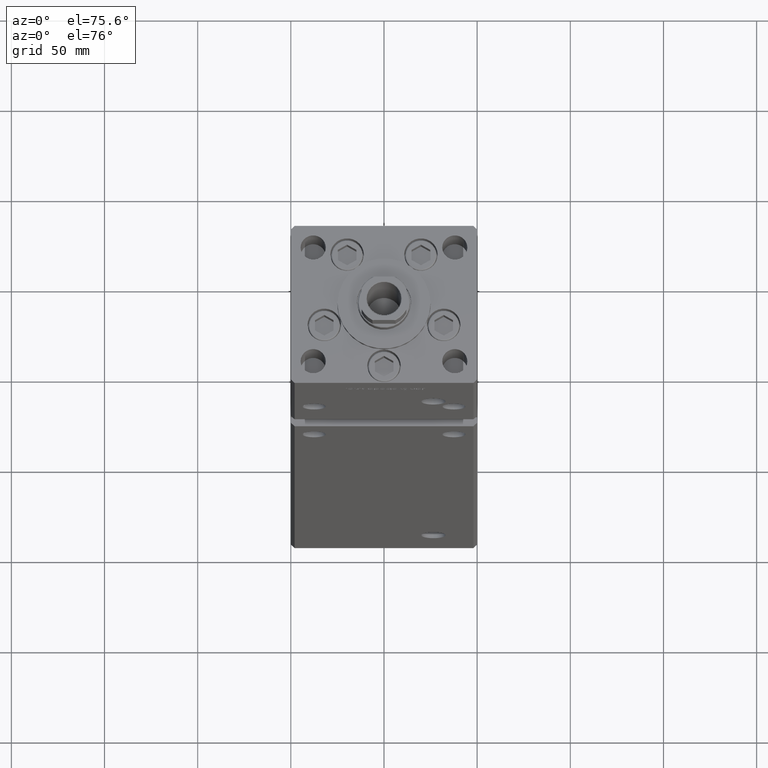
[diagram: clean part render]
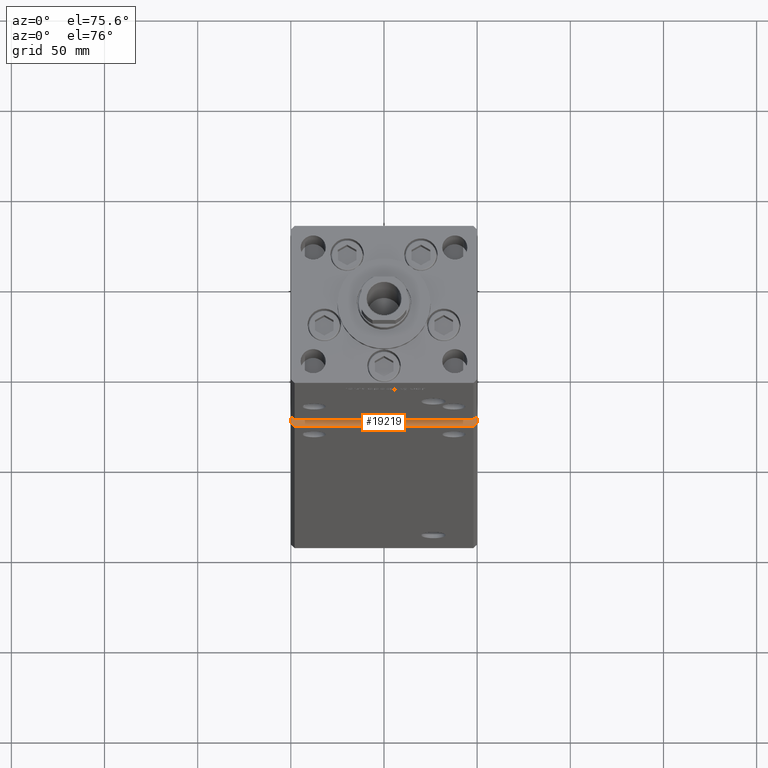
[diagram: same view with one face highlighted and labeled with its STEP entity id]
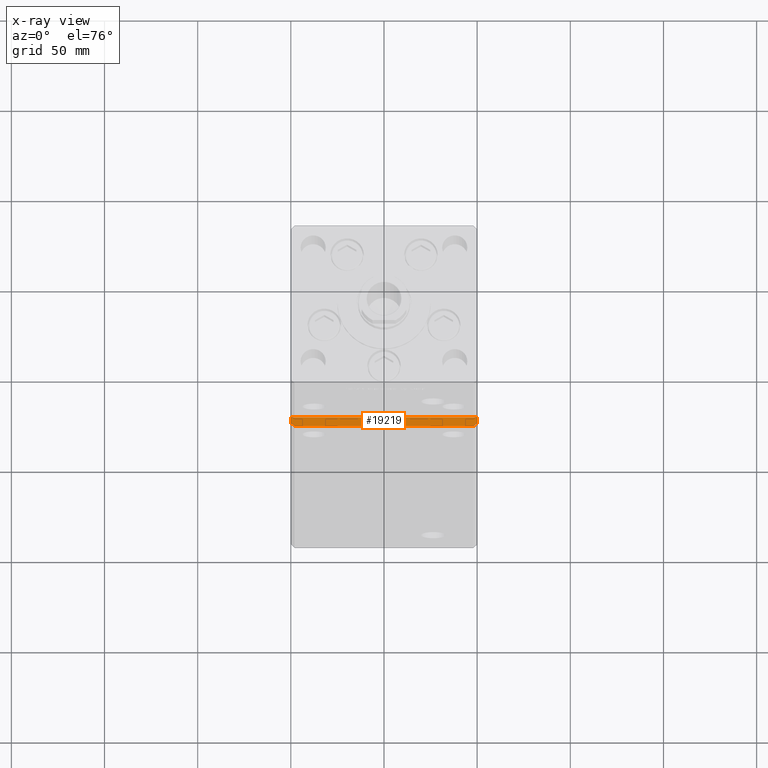
[diagram: x-ray of the same camera — body ghosted, the highlighted face saturated]
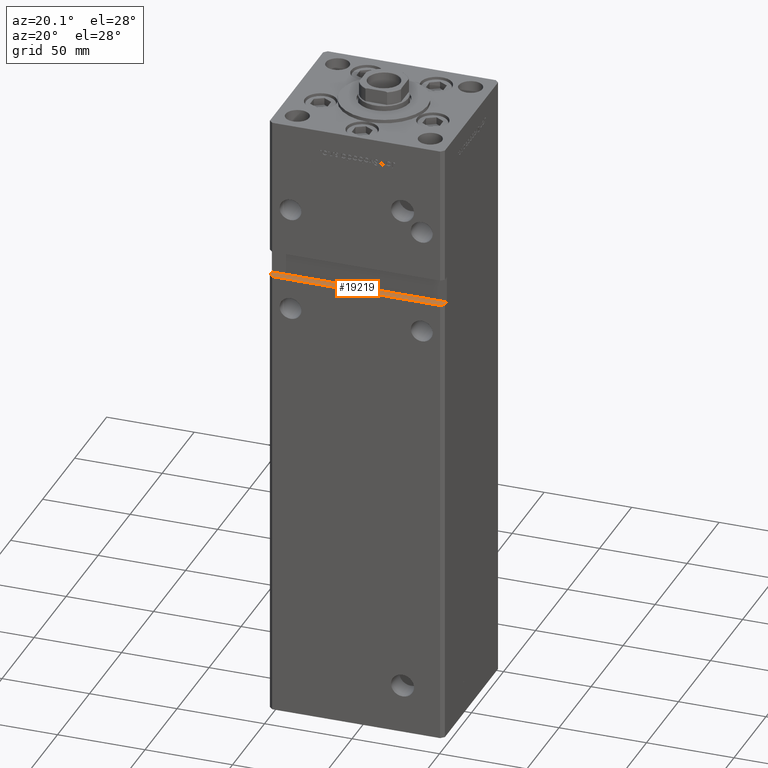
[diagram: same view with one face highlighted and labeled with its STEP entity id]
A machine part, auxiliary view. The second image highlights one B-rep face of the part: STEP entity #19219.
The next image is the same camera in x-ray: the body ghosted, the highlighted face saturated — about 0% of this face is hidden behind the body in this view.
A second angle (auxiliary view) of the same face is appended — the face is thin or edge-on in the first view.
In plain terms, the highlighted planar face has unit normal (0, 0, -1).
Its self-contained STEP definition (entity closure, byte-faithful):
#3720 = CARTESIAN_POINT ( 'NONE',  ( -47.99999999999998579, -43.50000000000000000, 244.0000000000000000 ) ) ;
#5579 = ORIENTED_EDGE ( 'NONE', *, *, #52974, .T. ) ;
#7599 = CARTESIAN_POINT ( 'NONE',  ( 49.99999999999998579, -41.49999999999999289, 244.0000000000000000 ) ) ;
#8916 = VECTOR ( 'NONE', #16835, 1000.000000000000114 ) ;
#9583 = CARTESIAN_POINT ( 'NONE',  ( -49.99999999999998579, -38.50000000000000000, 244.0000000000000000 ) ) ;
#9867 = EDGE_CURVE ( 'NONE', #41128, #52628, #35999, .T. ) ;
#9975 = CARTESIAN_POINT ( 'NONE',  ( -49.99999999999998579, -43.50000000000000000, 244.0000000000000000 ) ) ;
#12629 = CARTESIAN_POINT ( 'NONE',  ( 47.99999999999998579, -43.50000000000000000, 244.0000000000000000 ) ) ;
#12872 = EDGE_LOOP ( 'NONE', ( #22482, #5579, #16324, #18012, #52130, #51060 ) ) ;
#14399 = DIRECTION ( 'NONE',  ( -0.000000000000000000, -1.000000000000000000, -0.000000000000000000 ) ) ;
#14445 = FACE_OUTER_BOUND ( 'NONE', #12872, .T. ) ;
#15977 = CARTESIAN_POINT ( 'NONE',  ( -49.99999999999998579, -38.50000000000000000, 244.0000000000000000 ) ) ;
#16167 = EDGE_CURVE ( 'NONE', #43715, #41128, #24120, .T. ) ;
#16324 = ORIENTED_EDGE ( 'NONE', *, *, #9867, .F. ) ;
#16835 = DIRECTION ( 'NONE',  ( -0.7071067811865474617, 0.7071067811865474617, 0.000000000000000000 ) ) ;
#18012 = ORIENTED_EDGE ( 'NONE', *, *, #16167, .F. ) ;
#18877 = VECTOR ( 'NONE', #40387, 1000.000000000000114 ) ;
#18968 = VERTEX_POINT ( 'NONE', #3720 ) ;
#19219 = ADVANCED_FACE ( 'NONE', ( #14445 ), #30843, .F. ) ;
#20092 = CARTESIAN_POINT ( 'NONE',  ( -49.99999999999998579, -38.50000000000000000, 244.0000000000000000 ) ) ;
#20660 = CARTESIAN_POINT ( 'NONE',  ( 49.99999999999998579, -38.50000000000000000, 244.0000000000000000 ) ) ;
#22122 = VERTEX_POINT ( 'NONE', #48229 ) ;
#22482 = ORIENTED_EDGE ( 'NONE', *, *, #41120, .T. ) ;
#22779 = CARTESIAN_POINT ( 'NONE',  ( -49.99999999999998579, -38.50000000000000000, 244.0000000000000000 ) ) ;
#24120 = LINE ( 'NONE', #20092, #33803 ) ;
#26626 = CARTESIAN_POINT ( 'NONE',  ( 49.99999999999998579, -38.49999999999999289, 244.0000000000000000 ) ) ;
#26811 = EDGE_CURVE ( 'NONE', #18968, #22122, #42370, .T. ) ;
#27246 = VECTOR ( 'NONE', #35225, 1000.000000000000000 ) ;
#30022 = CARTESIAN_POINT ( 'NONE',  ( -49.99999999999998579, -41.49999999999999289, 244.0000000000000000 ) ) ;
#30843 = PLANE ( 'NONE',  #34764 ) ;
#31804 = LINE ( 'NONE', #7599, #18877 ) ;
#32696 = VERTEX_POINT ( 'NONE', #12629 ) ;
#32759 = DIRECTION ( 'NONE',  ( -0.000000000000000000, -1.000000000000000000, -0.000000000000000000 ) ) ;
#33803 = VECTOR ( 'NONE', #41567, 1000.000000000000000 ) ;
#34764 = AXIS2_PLACEMENT_3D ( 'NONE', #22779, #47232, #39176 ) ;
#35225 = DIRECTION ( 'NONE',  ( 1.000000000000000000, 0.000000000000000000, 0.000000000000000000 ) ) ;
#35999 = LINE ( 'NONE', #20660, #51767 ) ;
#36868 = VECTOR ( 'NONE', #14399, 1000.000000000000000 ) ;
#39176 = DIRECTION ( 'NONE',  ( -1.000000000000000000, 0.000000000000000000, -0.000000000000000000 ) ) ;
#40387 = DIRECTION ( 'NONE',  ( 0.7071067811865474617, 0.7071067811865474617, 0.000000000000000000 ) ) ;
#41120 = EDGE_CURVE ( 'NONE', #18968, #32696, #50835, .T. ) ;
#41128 = VERTEX_POINT ( 'NONE', #26626 ) ;
#41567 = DIRECTION ( 'NONE',  ( 1.000000000000000000, 0.000000000000000000, 0.000000000000000000 ) ) ;
#42370 = LINE ( 'NONE', #30022, #8916 ) ;
#43715 = VERTEX_POINT ( 'NONE', #15977 ) ;
#45003 = CARTESIAN_POINT ( 'NONE',  ( 49.99999999999998579, -41.49999999999999289, 244.0000000000000000 ) ) ;
#46901 = EDGE_CURVE ( 'NONE', #43715, #22122, #51234, .T. ) ;
#47232 = DIRECTION ( 'NONE',  ( 0.000000000000000000, 0.000000000000000000, -1.000000000000000000 ) ) ;
#48229 = CARTESIAN_POINT ( 'NONE',  ( -49.99999999999998579, -41.49999999999999289, 244.0000000000000000 ) ) ;
#50835 = LINE ( 'NONE', #9975, #27246 ) ;
#51060 = ORIENTED_EDGE ( 'NONE', *, *, #26811, .F. ) ;
#51234 = LINE ( 'NONE', #9583, #36868 ) ;
#51767 = VECTOR ( 'NONE', #32759, 1000.000000000000000 ) ;
#52130 = ORIENTED_EDGE ( 'NONE', *, *, #46901, .T. ) ;
#52628 = VERTEX_POINT ( 'NONE', #45003 ) ;
#52974 = EDGE_CURVE ( 'NONE', #32696, #52628, #31804, .T. ) ;